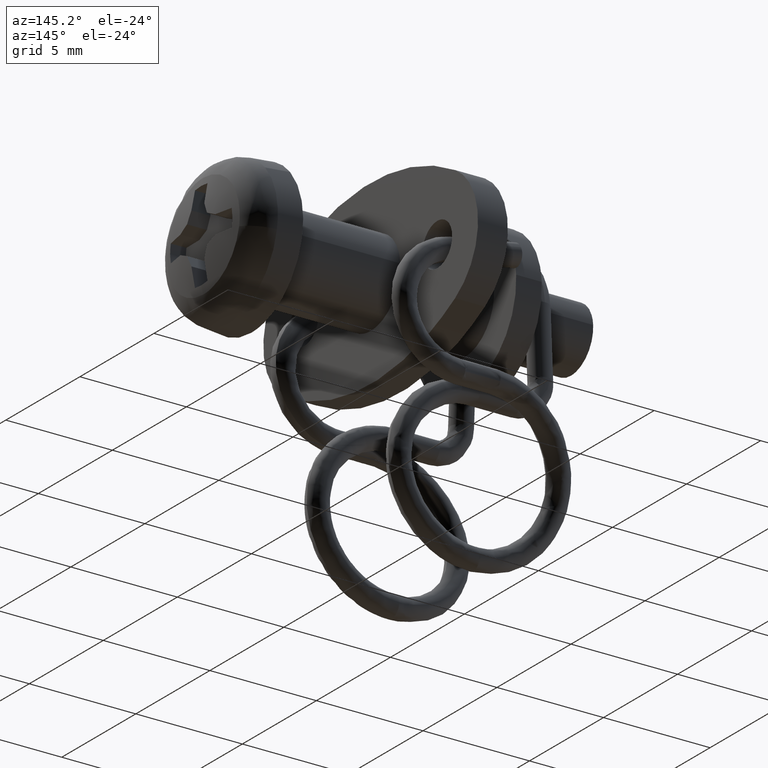
[diagram: clean part render]
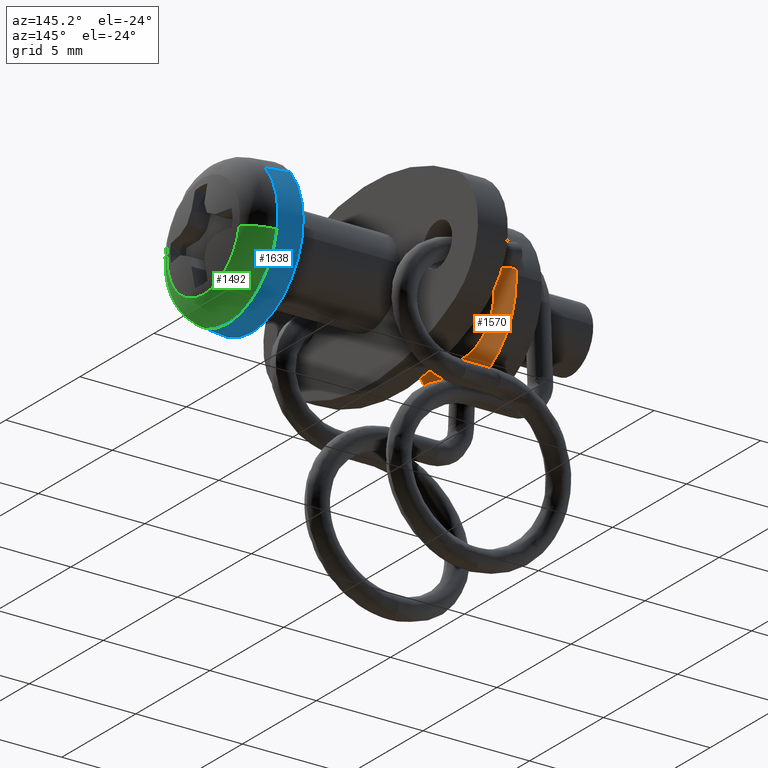
[diagram: same view with three faces highlighted in distinct colors, each labeled with its STEP entity id]
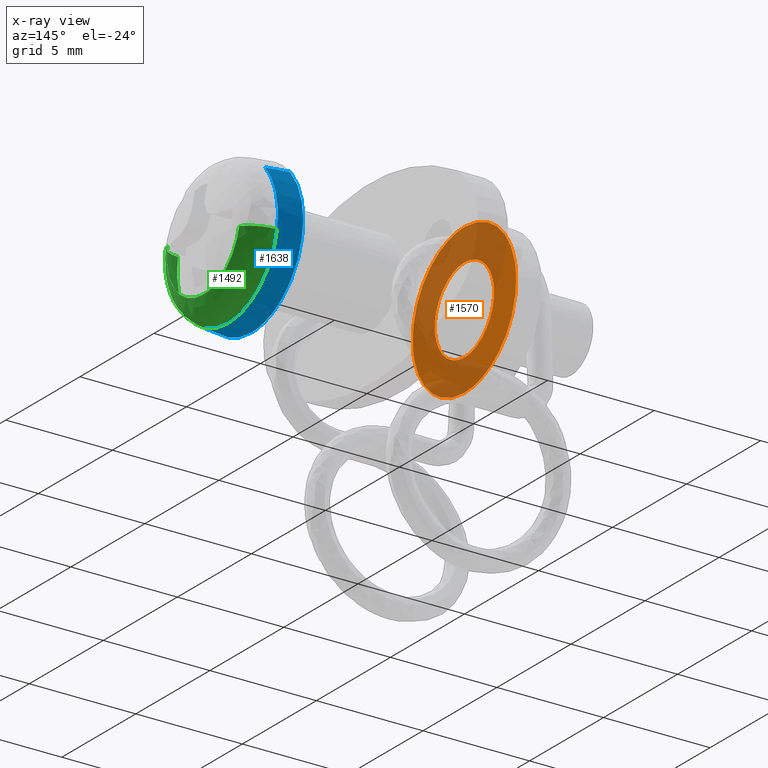
[diagram: x-ray of the same camera — body ghosted, the three highlighted faces saturated]
A machine part, auxiliary view with three faces highlighted in distinct colors.
The next image is the same camera in x-ray (body ghosted, the three faces saturated) — at least one of them is partly hidden behind the body in this view.
Their STEP definitions:

[orange] entity #1570 — the highlighted face is a freeform B-spline surface patch.
#296=CARTESIAN_POINT('',(-9.999999999999702,3.493471902632041,0.213668120028774));
#297=VERTEX_POINT('',#296);
#303=CARTESIAN_POINT('',(-9.999999999999700,0.0,-3.499999999999901));
#304=VERTEX_POINT('',#303);
#305=CARTESIAN_POINT('',(-9.999999999999702,3.493471902632040,0.213668120028773));
#306=CARTESIAN_POINT('',(-9.999999999999702,3.499999999999459,0.106933784894324));
#307=CARTESIAN_POINT('',(-9.999999999999702,3.499999999999466,-2.687885E-014));
#308=CARTESIAN_POINT('',(-9.999999999999702,3.499999999999690,-3.499999999999914));
#309=CARTESIAN_POINT('',(-9.999999999999700,0.0,-3.499999999999901));
#317=(BOUNDED_CURVE()B_SPLINE_CURVE(2,(#305,#306,#307,#308,#309),.UNSPECIFIED.,.F.,.U.)B_SPLINE_CURVE_WITH_KNOTS((3,2,3),(0.239333049582581,0.250000000000000,0.500000000000000),.UNSPECIFIED.)CURVE()GEOMETRIC_REPRESENTATION_ITEM()RATIONAL_B_SPLINE_CURVE((0.976072228860831,0.987502890229274,1.0,0.707106781186547,1.0))REPRESENTATION_ITEM(''));
#318=EDGE_CURVE('',#297,#304,#317,.T.);
#320=CARTESIAN_POINT('',(-9.999999999999702,-3.493471902632041,-0.213668120028774));
#321=VERTEX_POINT('',#320);
#322=CARTESIAN_POINT('',(-9.999999999999700,0.0,-3.499999999999901));
#323=CARTESIAN_POINT('',(-9.999999999999702,-3.292472903884053,-3.499999999999887));
#324=CARTESIAN_POINT('',(-9.999999999999702,-3.493471902632040,-0.213668120028774));
#332=(BOUNDED_CURVE()B_SPLINE_CURVE(2,(#322,#323,#324),.UNSPECIFIED.,.F.,.U.)B_SPLINE_CURVE_WITH_KNOTS((3,3),(0.500000000000000,0.739333049582581),.UNSPECIFIED.)CURVE()GEOMETRIC_REPRESENTATION_ITEM()RATIONAL_B_SPLINE_CURVE((1.0,0.719603890957273,0.976072228860831))REPRESENTATION_ITEM(''));
#333=EDGE_CURVE('',#304,#321,#332,.T.);
#365=CARTESIAN_POINT('',(-9.999999999999700,0.0,3.499999999999901));
#366=VERTEX_POINT('',#365);
#367=CARTESIAN_POINT('',(-9.999999999999702,-3.493471902632040,-0.213668120028774));
#368=CARTESIAN_POINT('',(-9.999999999999702,-3.499999999999459,-0.106933784894324));
#369=CARTESIAN_POINT('',(-9.999999999999702,-3.499999999999466,2.722897E-014));
#370=CARTESIAN_POINT('',(-9.999999999999702,-3.499999999999690,3.499999999999914));
#371=CARTESIAN_POINT('',(-9.999999999999700,0.0,3.499999999999901));
#379=(BOUNDED_CURVE()B_SPLINE_CURVE(2,(#367,#368,#369,#370,#371),.UNSPECIFIED.,.F.,.U.)B_SPLINE_CURVE_WITH_KNOTS((3,2,3),(0.739333049582581,0.750000000000000,1.0),.UNSPECIFIED.)CURVE()GEOMETRIC_REPRESENTATION_ITEM()RATIONAL_B_SPLINE_CURVE((0.976072228860831,0.987502890229274,1.0,0.707106781186547,1.0))REPRESENTATION_ITEM(''));
#380=EDGE_CURVE('',#321,#366,#379,.T.);
#382=CARTESIAN_POINT('',(-9.999999999999700,0.0,3.499999999999901));
#383=CARTESIAN_POINT('',(-9.999999999999702,3.292472903884053,3.499999999999887));
#384=CARTESIAN_POINT('',(-9.999999999999702,3.493471902632040,0.213668120028773));
#392=(BOUNDED_CURVE()B_SPLINE_CURVE(2,(#382,#383,#384),.UNSPECIFIED.,.F.,.U.)B_SPLINE_CURVE_WITH_KNOTS((3,3),(0.0,0.239333049582581),.UNSPECIFIED.)CURVE()GEOMETRIC_REPRESENTATION_ITEM()RATIONAL_B_SPLINE_CURVE((1.0,0.719603890957273,0.976072228860831))REPRESENTATION_ITEM(''));
#393=EDGE_CURVE('',#366,#297,#392,.T.);
#1493=CARTESIAN_POINT('',(-9.999999999999700,-3.849563855582060,-3.849649986432532));
#1494=CARTESIAN_POINT('',(-9.999999999999700,-3.849563855582060,3.849650174187163));
#1495=CARTESIAN_POINT('',(-9.999999999999700,3.849563730412306,-3.849649986432532));
#1496=CARTESIAN_POINT('',(-9.999999999999700,3.849563730412306,3.849650174187163));
#1497=B_SPLINE_SURFACE_WITH_KNOTS('',1,1,((#1493,#1495),(#1494,#1496)),.UNSPECIFIED.,.F.,.F.,.U.,(2,2),(2,2),(0.0,7.699300160619695),(0.0,7.699127585994367),.UNSPECIFIED.);
#1498=ORIENTED_EDGE('',*,*,#380,.F.);
#1499=ORIENTED_EDGE('',*,*,#333,.F.);
#1500=ORIENTED_EDGE('',*,*,#318,.F.);
#1501=ORIENTED_EDGE('',*,*,#393,.F.);
#1502=EDGE_LOOP('',(#1498,#1499,#1500,#1501));
#1503=FACE_OUTER_BOUND('',#1502,.T.);
#1504=CARTESIAN_POINT('',(-9.999999999999700,0.0,-2.0));
#1505=VERTEX_POINT('',#1504);
#1506=CARTESIAN_POINT('',(-9.999999999999700,-1.996269596843025,-0.122097079081309));
#1507=VERTEX_POINT('',#1506);
#1508=CARTESIAN_POINT('',(-9.999999999999700,0.0,-2.0));
#1509=CARTESIAN_POINT('',(-9.999999999999700,-1.881412133800442,-2.000000000000000));
#1510=CARTESIAN_POINT('',(-9.999999999999700,-1.996269596843025,-0.122097079081308));
#1518=(BOUNDED_CURVE()B_SPLINE_CURVE(2,(#1508,#1509,#1510),.UNSPECIFIED.,.F.,.U.)B_SPLINE_CURVE_WITH_KNOTS((3,3),(0.500000000000000,0.739332962240966),.UNSPECIFIED.)CURVE()GEOMETRIC_REPRESENTATION_ITEM()RATIONAL_B_SPLINE_CURVE((1.0,0.719603993284340,0.976072041671054))REPRESENTATION_ITEM(''));
#1519=EDGE_CURVE('',#1505,#1507,#1518,.T.);
#1520=ORIENTED_EDGE('',*,*,#1519,.T.);
#1521=CARTESIAN_POINT('',(-9.999999999999700,0.0,2.0));
#1522=VERTEX_POINT('',#1521);
#1523=CARTESIAN_POINT('',(-9.999999999999700,-1.996269596843025,-0.122097079081308));
#1524=CARTESIAN_POINT('',(-9.999999999999700,-2.000000000000000,-0.061105526602991));
#1525=CARTESIAN_POINT('',(-9.999999999999700,-2.0,0.0));
#1526=CARTESIAN_POINT('',(-9.999999999999700,-2.000000000000000,2.000000000000000));
#1527=CARTESIAN_POINT('',(-9.999999999999700,0.0,2.0));
#1535=(BOUNDED_CURVE()B_SPLINE_CURVE(2,(#1523,#1524,#1525,#1526,#1527),.UNSPECIFIED.,.F.,.U.)B_SPLINE_CURVE_WITH_KNOTS((3,2,3),(0.739332962240966,0.750000000000000,1.0),.UNSPECIFIED.)CURVE()GEOMETRIC_REPRESENTATION_ITEM()RATIONAL_B_SPLINE_CURVE((0.976072041671054,0.987502787902208,1.0,0.707106781186548,1.0))REPRESENTATION_ITEM(''));
#1536=EDGE_CURVE('',#1507,#1522,#1535,.T.);
#1537=ORIENTED_EDGE('',*,*,#1536,.T.);
#1538=CARTESIAN_POINT('',(-9.999999999999700,1.996269596843025,0.122097079081309));
#1539=VERTEX_POINT('',#1538);
#1540=CARTESIAN_POINT('',(-9.999999999999700,0.0,2.0));
#1541=CARTESIAN_POINT('',(-9.999999999999700,1.881412133800442,2.000000000000000));
#1542=CARTESIAN_POINT('',(-9.999999999999702,1.996269596843025,0.122097079081309));
#1550=(BOUNDED_CURVE()B_SPLINE_CURVE(2,(#1540,#1541,#1542),.UNSPECIFIED.,.F.,.U.)B_SPLINE_CURVE_WITH_KNOTS((3,3),(0.0,0.239332962240966),.UNSPECIFIED.)CURVE()GEOMETRIC_REPRESENTATION_ITEM()RATIONAL_B_SPLINE_CURVE((1.0,0.719603993284340,0.976072041671054))REPRESENTATION_ITEM(''));
#1551=EDGE_CURVE('',#1522,#1539,#1550,.T.);
#1552=ORIENTED_EDGE('',*,*,#1551,.T.);
#1553=CARTESIAN_POINT('',(-9.999999999999702,1.996269596843025,0.122097079081309));
#1554=CARTESIAN_POINT('',(-9.999999999999700,2.000000000000000,0.061105526602992));
#1555=CARTESIAN_POINT('',(-9.999999999999700,2.0,0.0));
#1556=CARTESIAN_POINT('',(-9.999999999999700,2.000000000000000,-2.000000000000000));
#1557=CARTESIAN_POINT('',(-9.999999999999700,0.0,-2.0));
#1565=(BOUNDED_CURVE()B_SPLINE_CURVE(2,(#1553,#1554,#1555,#1556,#1557),.UNSPECIFIED.,.F.,.U.)B_SPLINE_CURVE_WITH_KNOTS((3,2,3),(0.239332962240966,0.250000000000000,0.500000000000000),.UNSPECIFIED.)CURVE()GEOMETRIC_REPRESENTATION_ITEM()RATIONAL_B_SPLINE_CURVE((0.976072041671054,0.987502787902208,1.0,0.707106781186548,1.0))REPRESENTATION_ITEM(''));
#1566=EDGE_CURVE('',#1539,#1505,#1565,.T.);
#1567=ORIENTED_EDGE('',*,*,#1566,.T.);
#1568=EDGE_LOOP('',(#1520,#1537,#1552,#1567));
#1569=FACE_BOUND('',#1568,.T.);
#1570=ADVANCED_FACE('',(#1503,#1569),#1497,.F.);

[blue] entity #1638 — the highlighted face is a freeform B-spline surface patch.
#1370=CARTESIAN_POINT('',(1.119500963240281,3.341732544523715,-0.637469575953667));
#1371=VERTEX_POINT('',#1370);
#1385=CARTESIAN_POINT('',(1.119500963231011,2.547940742091299,2.254227547119686));
#1386=VERTEX_POINT('',#1385);
#1387=CARTESIAN_POINT('',(1.119500963231011,2.547940742091299,2.254227547119686));
#1388=CARTESIAN_POINT('',(1.119500963235377,3.401991160981770,1.288899152977318));
#1389=CARTESIAN_POINT('',(1.119500963238745,3.401991160981525,2.474401E-013));
#1390=CARTESIAN_POINT('',(1.119500963239585,3.401991160981464,-0.321582846138513));
#1391=CARTESIAN_POINT('',(1.119500963240281,3.341732544523715,-0.637469575953667));
#1399=(BOUNDED_CURVE()B_SPLINE_CURVE(2,(#1387,#1388,#1389,#1390,#1391),.UNSPECIFIED.,.F.,.U.)B_SPLINE_CURVE_WITH_KNOTS((3,2,3),(0.134220111940452,0.250000000000000,0.282161366259537),.UNSPECIFIED.)CURVE()GEOMETRIC_REPRESENTATION_ITEM()RATIONAL_B_SPLINE_CURVE((0.854350158224978,0.864355423649511,1.0,0.962320615659223,0.934335795160187))REPRESENTATION_ITEM(''));
#1400=EDGE_CURVE('',#1386,#1371,#1399,.T.);
#1441=CARTESIAN_POINT('',(1.119500963231011,-2.547940742091299,-2.254227547119685));
#1442=VERTEX_POINT('',#1441);
#1458=CARTESIAN_POINT('',(1.119500963222550,0.0,-3.401991160982940));
#1459=VERTEX_POINT('',#1458);
#1460=CARTESIAN_POINT('',(1.119500963222550,0.0,-3.401991160982940));
#1461=CARTESIAN_POINT('',(1.119500963225842,-1.532485275169217,-3.401991160982947));
#1462=CARTESIAN_POINT('',(1.119500963231011,-2.547940742091300,-2.254227547119684));
#1470=(BOUNDED_CURVE()B_SPLINE_CURVE(2,(#1460,#1461,#1462),.UNSPECIFIED.,.F.,.U.)B_SPLINE_CURVE_WITH_KNOTS((3,3),(0.500000000000000,0.634220111940452),.UNSPECIFIED.)CURVE()GEOMETRIC_REPRESENTATION_ITEM()RATIONAL_B_SPLINE_CURVE((1.0,0.842751357537037,0.854350158224977))REPRESENTATION_ITEM(''));
#1471=EDGE_CURVE('',#1459,#1442,#1470,.T.);
#1473=CARTESIAN_POINT('',(1.119500963240281,3.341732544523715,-0.637469575953667));
#1474=CARTESIAN_POINT('',(1.119500963231415,2.814371847926790,-3.401991160982794));
#1475=CARTESIAN_POINT('',(1.119500963222550,0.0,-3.401991160982940));
#1483=(BOUNDED_CURVE()B_SPLINE_CURVE(2,(#1473,#1474,#1475),.UNSPECIFIED.,.F.,.U.)B_SPLINE_CURVE_WITH_KNOTS((3,3),(0.282161366259537,0.500000000000000),.UNSPECIFIED.)CURVE()GEOMETRIC_REPRESENTATION_ITEM()RATIONAL_B_SPLINE_CURVE((0.934335795160187,0.744786165527324,1.0))REPRESENTATION_ITEM(''));
#1484=EDGE_CURVE('',#1371,#1459,#1483,.T.);
#1571=CARTESIAN_POINT('',(1.147488487321288,2.546105635073855,2.252603981578096));
#1572=CARTESIAN_POINT('',(1.147488487321288,4.798709616651951,-0.293501653495759));
#1573=CARTESIAN_POINT('',(1.147488487321288,2.252603981578096,-2.546105635073855));
#1574=CARTESIAN_POINT('',(1.147488487321288,-0.293501653495759,-4.798709616651951));
#1575=CARTESIAN_POINT('',(1.147488487321288,-2.546105635073855,-2.252603981578096));
#1576=CARTESIAN_POINT('',(-0.028687212183033,2.623226007453774,2.320834323434573));
#1577=CARTESIAN_POINT('',(-0.028687212183033,4.944060330888348,-0.302391684019201));
#1578=CARTESIAN_POINT('',(-0.028687212183033,2.320834323434573,-2.623226007453774));
#1579=CARTESIAN_POINT('',(-0.028687212183033,-0.302391684019201,-4.944060330888348));
#1580=CARTESIAN_POINT('',(-0.028687212183033,-2.623226007453774,-2.320834323434573));
#1588=(BOUNDED_SURFACE()B_SPLINE_SURFACE(2,1,((#1571,#1576),(#1572,#1577),(#1573,#1578),(#1574,#1579),(#1575,#1580)),.UNSPECIFIED.,.F.,.F.,.U.)B_SPLINE_SURFACE_WITH_KNOTS((3,2,3),(2,2),(0.0,5.803151023734780,11.606302047469560),(0.0,1.0),.UNSPECIFIED.)GEOMETRIC_REPRESENTATION_ITEM()RATIONAL_B_SPLINE_SURFACE(((1.0,1.0),(0.707106781186548,0.707106781186548),(1.0,1.0),(0.707106781186548,0.707106781186548),(1.0,1.0)))REPRESENTATION_ITEM('')SURFACE());
#1589=ORIENTED_EDGE('',*,*,#1400,.T.);
#1590=ORIENTED_EDGE('',*,*,#1484,.T.);
#1591=ORIENTED_EDGE('',*,*,#1471,.T.);
#1592=CARTESIAN_POINT('',(-5.332540E-015,-2.621345022761561,-2.319170168755171));
#1593=VERTEX_POINT('',#1592);
#1594=CARTESIAN_POINT('',(1.119500963231011,-2.547940742091299,-2.254227547119685));
#1595=CARTESIAN_POINT('',(-5.332540E-015,-2.621345022761561,-2.319170168755171));
#1596=QUASI_UNIFORM_CURVE('',1,(#1594,#1595),.UNSPECIFIED.,.F.,.U.);
#1597=EDGE_CURVE('',#1442,#1593,#1596,.T.);
#1598=ORIENTED_EDGE('',*,*,#1597,.T.);
#1599=CARTESIAN_POINT('',(-6.661338E-016,0.0,-3.500000000000100));
#1600=VERTEX_POINT('',#1599);
#1601=CARTESIAN_POINT('',(-6.661338E-016,0.0,-3.500000000000100));
#1602=CARTESIAN_POINT('',(-6.661338E-016,-1.576635037917810,-3.500000000000101));
#1603=CARTESIAN_POINT('',(-6.661338E-016,-2.621345022761549,-2.319170168755187));
#1611=(BOUNDED_CURVE()B_SPLINE_CURVE(2,(#1601,#1602,#1603),.UNSPECIFIED.,.F.,.U.)B_SPLINE_CURVE_WITH_KNOTS((3,3),(0.500000000000000,0.634220111940426),.UNSPECIFIED.)CURVE()GEOMETRIC_REPRESENTATION_ITEM()RATIONAL_B_SPLINE_CURVE((1.0,0.842751357537067,0.854350158224973))REPRESENTATION_ITEM(''));
#1612=EDGE_CURVE('',#1600,#1593,#1611,.T.);
#1613=ORIENTED_EDGE('',*,*,#1612,.F.);
#1614=CARTESIAN_POINT('',(-5.332540E-015,2.621345022761561,2.319170168755171));
#1615=VERTEX_POINT('',#1614);
#1616=CARTESIAN_POINT('',(-5.332540E-015,2.621345022761561,2.319170168755171));
#1617=CARTESIAN_POINT('',(-6.661338E-016,3.500000000000100,1.326031380433673));
#1618=CARTESIAN_POINT('',(-6.661338E-016,3.500000000000100,0.0));
#1619=CARTESIAN_POINT('',(-6.661338E-016,3.500000000000100,-3.500000000000100));
#1620=CARTESIAN_POINT('',(-6.661338E-016,0.0,-3.500000000000100));
#1628=(BOUNDED_CURVE()B_SPLINE_CURVE(2,(#1616,#1617,#1618,#1619,#1620),.UNSPECIFIED.,.F.,.U.)B_SPLINE_CURVE_WITH_KNOTS((3,2,3),(0.134220111940426,0.250000000000000,0.500000000000000),.UNSPECIFIED.)CURVE()GEOMETRIC_REPRESENTATION_ITEM()RATIONAL_B_SPLINE_CURVE((0.854350158224973,0.864355423649480,1.0,0.707106781186548,1.0))REPRESENTATION_ITEM(''));
#1629=EDGE_CURVE('',#1615,#1600,#1628,.T.);
#1630=ORIENTED_EDGE('',*,*,#1629,.F.);
#1631=CARTESIAN_POINT('',(1.119500963231011,2.547940742091299,2.254227547119686));
#1632=CARTESIAN_POINT('',(-5.332540E-015,2.621345022761561,2.319170168755171));
#1633=QUASI_UNIFORM_CURVE('',1,(#1631,#1632),.UNSPECIFIED.,.F.,.U.);
#1634=EDGE_CURVE('',#1386,#1615,#1633,.T.);
#1635=ORIENTED_EDGE('',*,*,#1634,.F.);
#1636=EDGE_LOOP('',(#1589,#1590,#1591,#1598,#1613,#1630,#1635));
#1637=FACE_OUTER_BOUND('',#1636,.T.);
#1638=ADVANCED_FACE('',(#1637),#1588,.T.);

[green] entity #1492 — the highlighted face is a freeform B-spline surface patch.
#1198=CARTESIAN_POINT('',(2.256509550752764,0.0,-2.462662333586984));
#1199=VERTEX_POINT('',#1198);
#1213=CARTESIAN_POINT('',(2.256509203458241,2.419044308359391,-0.461457381464465));
#1214=VERTEX_POINT('',#1213);
#1215=CARTESIAN_POINT('',(2.256509203458241,2.419044308359391,-0.461457381464465));
#1216=CARTESIAN_POINT('',(2.256509377104142,2.037293251075492,-2.462662324341546));
#1217=CARTESIAN_POINT('',(2.256509550752764,0.0,-2.462662333586984));
#1225=(BOUNDED_CURVE()B_SPLINE_CURVE(2,(#1215,#1216,#1217),.UNSPECIFIED.,.F.,.U.)B_SPLINE_CURVE_WITH_KNOTS((3,3),(0.282161400023211,0.500000000000000),.UNSPECIFIED.)CURVE()GEOMETRIC_REPRESENTATION_ITEM()RATIONAL_B_SPLINE_CURVE((0.934335736402100,0.744786205083929,1.0))REPRESENTATION_ITEM(''));
#1226=EDGE_CURVE('',#1214,#1199,#1225,.T.);
#1270=CARTESIAN_POINT('',(2.256509203459351,-2.419044308355559,0.461457381463733));
#1271=VERTEX_POINT('',#1270);
#1285=CARTESIAN_POINT('',(2.256509550752764,0.0,-2.462662333586984));
#1286=CARTESIAN_POINT('',(2.256509407098101,-2.462665028425659,-2.462662341235475));
#1287=CARTESIAN_POINT('',(2.256509233452755,-2.462664979959576,-0.000000016904323));
#1288=CARTESIAN_POINT('',(2.256509217038419,-2.462664975378177,0.232790365508820));
#1289=CARTESIAN_POINT('',(2.256509203459352,-2.419044308355559,0.461457381463733));
#1297=(BOUNDED_CURVE()B_SPLINE_CURVE(2,(#1285,#1286,#1287,#1288,#1289),.UNSPECIFIED.,.F.,.U.)B_SPLINE_CURVE_WITH_KNOTS((3,2,3),(0.500000000000000,0.750000000000000,0.782161400024583),.UNSPECIFIED.)CURVE()GEOMETRIC_REPRESENTATION_ITEM()RATIONAL_B_SPLINE_CURVE((1.0,0.707106781186548,1.0,0.962320576101012,0.934335736399713))REPRESENTATION_ITEM(''));
#1298=EDGE_CURVE('',#1199,#1271,#1297,.T.);
#1338=CARTESIAN_POINT('',(1.119500963240281,-3.341732544523715,0.637469575953667));
#1339=VERTEX_POINT('',#1338);
#1355=CARTESIAN_POINT('',(2.256509203459352,-2.419044308355559,0.461457381463733));
#1356=CARTESIAN_POINT('',(2.011497644884175,-3.265024279508818,0.622836691820688));
#1357=CARTESIAN_POINT('',(1.119500963240281,-3.341732544523715,0.637469575953667));
#1365=(BOUNDED_CURVE()B_SPLINE_CURVE(2,(#1355,#1356,#1357),.UNSPECIFIED.,.F.,.U.)B_SPLINE_CURVE_WITH_KNOTS((3,3),(-1.677507494498843,-0.335762472559782),.UNSPECIFIED.)CURVE()GEOMETRIC_REPRESENTATION_ITEM()RATIONAL_B_SPLINE_CURVE((0.904272232674120,0.743415986057712,0.901121629749273))REPRESENTATION_ITEM(''));
#1366=EDGE_CURVE('',#1271,#1339,#1365,.T.);
#1370=CARTESIAN_POINT('',(1.119500963240281,3.341732544523715,-0.637469575953667));
#1371=VERTEX_POINT('',#1370);
#1372=CARTESIAN_POINT('',(2.256509203458241,2.419044308359391,-0.461457381464465));
#1373=CARTESIAN_POINT('',(2.011497644881195,3.265024279509075,-0.622836691820738));
#1374=CARTESIAN_POINT('',(1.119500963240281,3.341732544523715,-0.637469575953667));
#1382=(BOUNDED_CURVE()B_SPLINE_CURVE(2,(#1372,#1373,#1374),.UNSPECIFIED.,.F.,.U.)B_SPLINE_CURVE_WITH_KNOTS((3,3),(-1.677507494495146,-0.335762472559783),.UNSPECIFIED.)CURVE()GEOMETRIC_REPRESENTATION_ITEM()RATIONAL_B_SPLINE_CURVE((0.904272232673234,0.743415986058147,0.901121629749273))REPRESENTATION_ITEM(''));
#1383=EDGE_CURVE('',#1214,#1371,#1382,.T.);
#1418=CARTESIAN_POINT('',(2.274475157552301,2.349679133651195,-0.448225266684048));
#1419=CARTESIAN_POINT('',(2.274475157552300,1.901453866967147,-2.797904400335244));
#1420=CARTESIAN_POINT('',(2.274475157552301,-0.448225266684048,-2.349679133651195));
#1421=CARTESIAN_POINT('',(2.274475157552300,-2.797904400335244,-1.901453866967147));
#1422=CARTESIAN_POINT('',(2.274475157552301,-2.349679133651195,0.448225266684048));
#1423=CARTESIAN_POINT('',(2.053518536539162,3.315243879048129,-0.632416592771086));
#1424=CARTESIAN_POINT('',(2.053518536539162,2.682827286277042,-3.947660471819215));
#1425=CARTESIAN_POINT('',(2.053518536539162,-0.632416592771085,-3.315243879048129));
#1426=CARTESIAN_POINT('',(2.053518536539162,-3.947660471819215,-2.682827286277042));
#1427=CARTESIAN_POINT('',(2.053518536539162,-3.315243879048129,0.632416592771085));
#1428=CARTESIAN_POINT('',(1.046500996196932,3.345982156448980,-0.638280232783923));
#1429=CARTESIAN_POINT('',(1.046500996196932,2.707701923665058,-3.984262389232903));
#1430=CARTESIAN_POINT('',(1.046500996196932,-0.638280232783922,-3.345982156448980));
#1431=CARTESIAN_POINT('',(1.046500996196932,-3.984262389232903,-2.707701923665058));
#1432=CARTESIAN_POINT('',(1.046500996196932,-3.345982156448980,0.638280232783922));
#1440=(BOUNDED_SURFACE()B_SPLINE_SURFACE(2,2,((#1418,#1423,#1428),(#1419,#1424,#1429),(#1420,#1425,#1430),(#1421,#1426,#1431),(#1422,#1427,#1432)),.UNSPECIFIED.,.F.,.F.,.U.)B_SPLINE_SURFACE_WITH_KNOTS((3,2,3),(3,3),(0.0,5.643771463516011,11.287542927032019),(0.0,1.779128560217389),.UNSPECIFIED.)GEOMETRIC_REPRESENTATION_ITEM()RATIONAL_B_SPLINE_SURFACE(((0.921137218033431,0.726708680474018,0.917671266306179),(0.651342373274750,0.513860635910306,0.648891575305145),(0.921137218033431,0.726708680474018,0.917671266306179),(0.651342373274750,0.513860635910306,0.648891575305145),(0.921137218033431,0.726708680474018,0.917671266306179)))REPRESENTATION_ITEM('')SURFACE());
#1441=CARTESIAN_POINT('',(1.119500963231011,-2.547940742091299,-2.254227547119685));
#1442=VERTEX_POINT('',#1441);
#1443=CARTESIAN_POINT('',(1.119500963231011,-2.547940742091300,-2.254227547119684));
#1444=CARTESIAN_POINT('',(1.119500963235377,-3.401991160981770,-1.288899152977317));
#1445=CARTESIAN_POINT('',(1.119500963238745,-3.401991160981526,-2.478705E-013));
#1446=CARTESIAN_POINT('',(1.119500963239585,-3.401991160981464,0.321582846138513));
#1447=CARTESIAN_POINT('',(1.119500963240281,-3.341732544523715,0.637469575953667));
#1455=(BOUNDED_CURVE()B_SPLINE_CURVE(2,(#1443,#1444,#1445,#1446,#1447),.UNSPECIFIED.,.F.,.U.)B_SPLINE_CURVE_WITH_KNOTS((3,2,3),(0.634220111940452,0.750000000000000,0.782161366259537),.UNSPECIFIED.)CURVE()GEOMETRIC_REPRESENTATION_ITEM()RATIONAL_B_SPLINE_CURVE((0.854350158224977,0.864355423649511,1.0,0.962320615659223,0.934335795160187))REPRESENTATION_ITEM(''));
#1456=EDGE_CURVE('',#1442,#1339,#1455,.T.);
#1457=ORIENTED_EDGE('',*,*,#1456,.F.);
#1458=CARTESIAN_POINT('',(1.119500963222550,0.0,-3.401991160982940));
#1459=VERTEX_POINT('',#1458);
#1460=CARTESIAN_POINT('',(1.119500963222550,0.0,-3.401991160982940));
#1461=CARTESIAN_POINT('',(1.119500963225842,-1.532485275169217,-3.401991160982947));
#1462=CARTESIAN_POINT('',(1.119500963231011,-2.547940742091300,-2.254227547119684));
#1470=(BOUNDED_CURVE()B_SPLINE_CURVE(2,(#1460,#1461,#1462),.UNSPECIFIED.,.F.,.U.)B_SPLINE_CURVE_WITH_KNOTS((3,3),(0.500000000000000,0.634220111940452),.UNSPECIFIED.)CURVE()GEOMETRIC_REPRESENTATION_ITEM()RATIONAL_B_SPLINE_CURVE((1.0,0.842751357537037,0.854350158224977))REPRESENTATION_ITEM(''));
#1471=EDGE_CURVE('',#1459,#1442,#1470,.T.);
#1472=ORIENTED_EDGE('',*,*,#1471,.F.);
#1473=CARTESIAN_POINT('',(1.119500963240281,3.341732544523715,-0.637469575953667));
#1474=CARTESIAN_POINT('',(1.119500963231415,2.814371847926790,-3.401991160982794));
#1475=CARTESIAN_POINT('',(1.119500963222550,0.0,-3.401991160982940));
#1483=(BOUNDED_CURVE()B_SPLINE_CURVE(2,(#1473,#1474,#1475),.UNSPECIFIED.,.F.,.U.)B_SPLINE_CURVE_WITH_KNOTS((3,3),(0.282161366259537,0.500000000000000),.UNSPECIFIED.)CURVE()GEOMETRIC_REPRESENTATION_ITEM()RATIONAL_B_SPLINE_CURVE((0.934335795160187,0.744786165527324,1.0))REPRESENTATION_ITEM(''));
#1484=EDGE_CURVE('',#1371,#1459,#1483,.T.);
#1485=ORIENTED_EDGE('',*,*,#1484,.F.);
#1486=ORIENTED_EDGE('',*,*,#1383,.F.);
#1487=ORIENTED_EDGE('',*,*,#1226,.T.);
#1488=ORIENTED_EDGE('',*,*,#1298,.T.);
#1489=ORIENTED_EDGE('',*,*,#1366,.T.);
#1490=EDGE_LOOP('',(#1457,#1472,#1485,#1486,#1487,#1488,#1489));
#1491=FACE_OUTER_BOUND('',#1490,.T.);
#1492=ADVANCED_FACE('',(#1491),#1440,.T.);